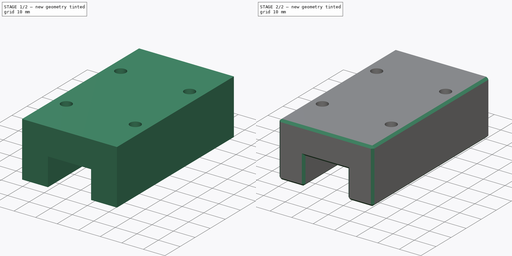
[diagram: build sequence overview — one tinted view per stage of 2, left to right]
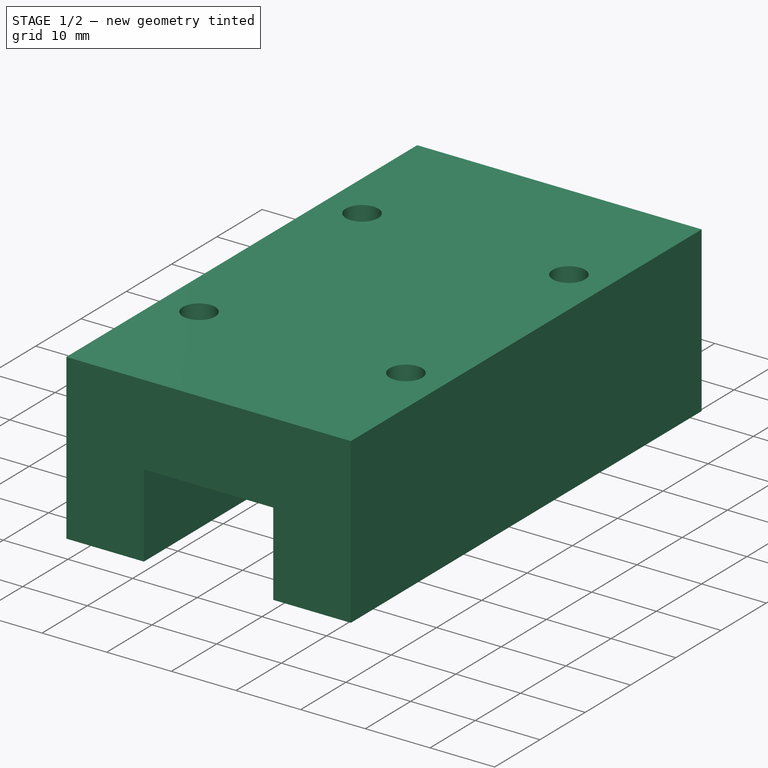
[diagram: stage 1 of 2 — iso view after this stage's code; geometry added in this stage tinted green]
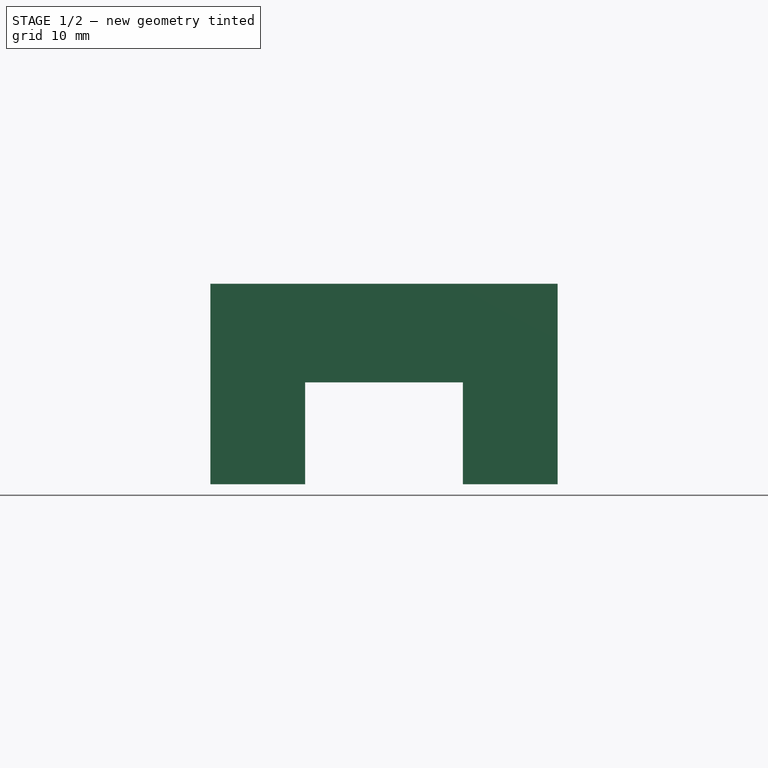
[diagram: stage 1 of 2 — front view after this stage's code; geometry added in this stage tinted green]
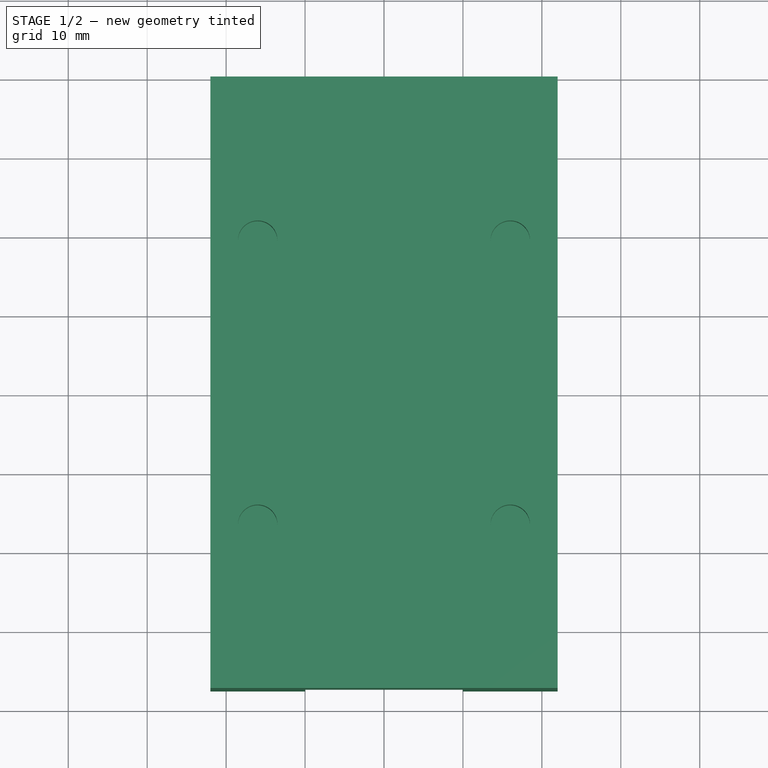
[diagram: stage 1 of 2 — top view after this stage's code; geometry added in this stage tinted green]
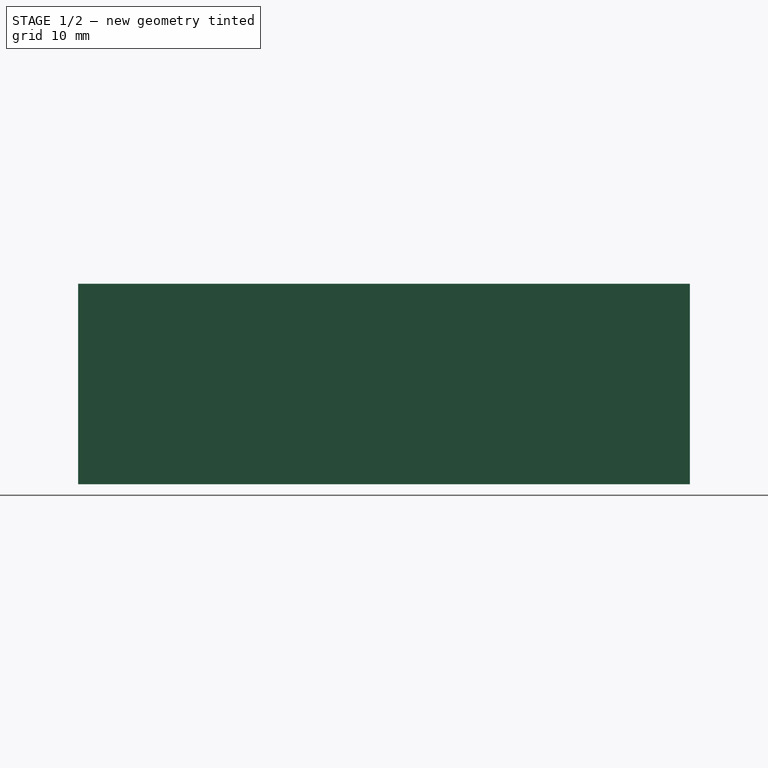
[diagram: stage 1 of 2 — right view after this stage's code; geometry added in this stage tinted green]
FCSTD DOCUMENT  (FreeCAD 0.19R24267 +99 (Git))
Label: HGH20CA slider block
License: All rights reserved
LicenseURL: http://en.wikipedia.org/wiki/All_rights_reserved
objects: Sketcher::SketchObject×3, PartDesign::Pocket×2, PartDesign::Pad×1, PartDesign::Chamfer×1, PartDesign::Body×1
note: 12 computed .brp shape members not serialized (recipe doc carries the construction recipe); baked Part::Feature solids carry a one-line shape summary decoded from their .brp

FEATURE [Sketcher::SketchObject] Sketch  label="End on profile"
  FullyConstrained = true
  MapMode = 5
  Placement = pos=(0,0,0) rot=(1,0,0;1.5708rad)
  Support = -> [XZ_Plane]
  sketch-geometry (9):
    g0: LineSegment StartX=-22 StartY=30 StartZ=0 EndX=22 EndY=30 EndZ=0
    g1: LineSegment StartX=22 StartY=30 StartZ=0 EndX=22 EndY=4.6 EndZ=0
    g2: LineSegment StartX=22 StartY=4.6 StartZ=0 EndX=10 EndY=4.6 EndZ=0
    g3: LineSegment StartX=-22 StartY=4.6 StartZ=0 EndX=-22 EndY=30 EndZ=0
    g4: LineSegment StartX=-10 StartY=4.6 StartZ=0 EndX=-10 EndY=17.5 EndZ=0
    g5: LineSegment StartX=-10 StartY=17.5 StartZ=0 EndX=10 EndY=17.5 EndZ=0
    g6: LineSegment StartX=10 StartY=17.5 StartZ=0 EndX=10 EndY=4.6 EndZ=0
    g7: GeomPoint X=0 Y=0 Z=0
    g8: LineSegment StartX=-10 StartY=4.6 StartZ=0 EndX=-22 EndY=4.6 EndZ=0
  constraints (23):
    c: Coincident(g0,g1)
    c: Coincident(g1,g2)
    c: Coincident(g8,g3)
    c: Coincident(g3,g0)
    c: Horizontal(g2)
    c: Vertical(g1)
    c: Vertical(g3)
    c: Vertical(g4)
    c: Coincident(g5,g4)
    c: Horizontal(g5)
    c: Coincident(g6,g5)
    c: Vertical(g6)
    c: DistanceX(g0,g0) = 44  'W'
    c: DistanceX(g4,g6) = 20  'WR'
    c: DistanceY(g7,g0) = 30  'H'
    c: DistanceY(g7,g8) = 4.6  'H1'
    c: DistanceY(g7,g5) = 17.5  'HR'
    c: Symmetric(g0,g0,g-2)
    c: Coincident(g7,g-1)
    c: Symmetric(g4,g6,g-2)
    c: PointOnObject(g2,g6)
    c: Coincident(g8,g4)
    c: Tangent(g2,g8)
FEATURE [PartDesign::Pad] Pad  label="Block length"
  Direction = (1,1,1)
  Length = 77.5
  Length2 = 100
  Placement = pos=(0,0,0) rot=(1,0,0;1.5708rad)
  Profile = -> Sketch
  Type = 0
FEATURE [Sketcher::SketchObject] Sketch001  label="Bolt hole locations"
  ExternalGeometry = -> [Pad]
  FullyConstrained = true
  MapMode = 5
  Placement = pos=(-2.4e-15,6.7e-15,30) rot=(0,0,1;3.14159rad)
  Support = -> [Pad]
  sketch-geometry (10):
    g0: LineSegment StartX=-16 StartY=56.75 StartZ=0 EndX=16 EndY=56.75 EndZ=0
    g1: LineSegment StartX=16 StartY=56.75 StartZ=0 EndX=16 EndY=20.75 EndZ=0
    g2: LineSegment StartX=16 StartY=20.75 StartZ=0 EndX=-16 EndY=20.75 EndZ=0
    g3: LineSegment StartX=-16 StartY=20.75 StartZ=0 EndX=-16 EndY=56.75 EndZ=0
    g4: Circle CenterX=-16 CenterY=20.75 CenterZ=0 NormalX=0 NormalY=0 NormalZ=1 AngleXU=0 Radius=2.5
    g5: Circle CenterX=16 CenterY=20.75 CenterZ=0 NormalX=0 NormalY=0 NormalZ=1 AngleXU=0 Radius=2.5
    g6: Circle CenterX=16 CenterY=56.75 CenterZ=0 NormalX=0 NormalY=0 NormalZ=1 AngleXU=0 Radius=2.5
    g7: Circle CenterX=-16 CenterY=56.75 CenterZ=0 NormalX=0 NormalY=0 NormalZ=1 AngleXU=0 Radius=2.5
    g8: LineSegment StartX=0 StartY=0 StartZ=0 EndX=0 EndY=20.75 EndZ=0
    g9: LineSegment StartX=-3.6e-15 StartY=77.5 StartZ=0 EndX=-3.6e-15 EndY=56.75 EndZ=0
  constraints (25):
    c: Coincident(g0,g1)
    c: Coincident(g1,g2)
    c: Coincident(g2,g3)
    c: Coincident(g3,g0)
    c: Horizontal(g0)
    c: Vertical(g1)
    c: Vertical(g3)
    c: Coincident(g4,g2)
    c: Coincident(g5,g1)
    c: Coincident(g6,g0)
    c: Coincident(g7,g0)
    c: Equal(g7,g6)
    c: Equal(g6,g5)
    c: Equal(g5,g4)
    c: DistanceY(g3,g3) = 36  'C'
    c: DistanceX(g2,g2) = 32  'B'
    c: Symmetric(g4,g5,g-2)
    c: Coincident(g8,g-1)
    c: Vertical(g8)
    c: PointOnObject(g9,g-3)
    c: PointOnObject(g9,g0)
    c: Equal(g8,g9)
    c: PointOnObject(g8,g2)
    c: Symmetric(g-3,g-3,g9)
    c: Diameter(g4) = 5
FEATURE [PartDesign::Pocket] Pocket  label="Bolt hole depth M5 threaded"
  BaseFeature = -> Pad
  Length = 6
  Length2 = 100
  Placement = pos=(0,0,0) rot=(1,0,0;1.5708rad)
  Profile = -> Sketch001
  Type = 0
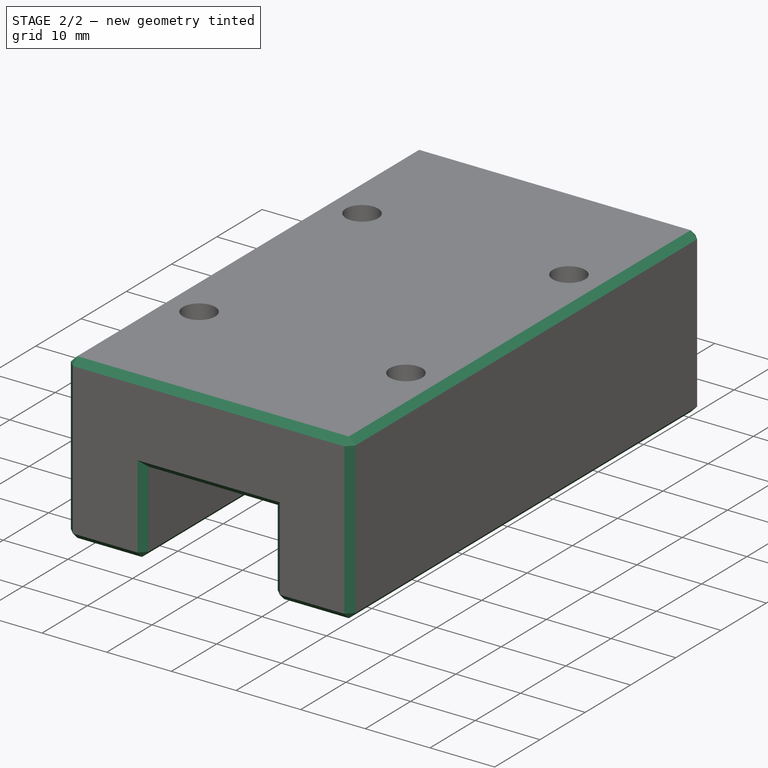
[diagram: stage 2 of 2 — iso view after this stage's code; geometry added in this stage tinted green]
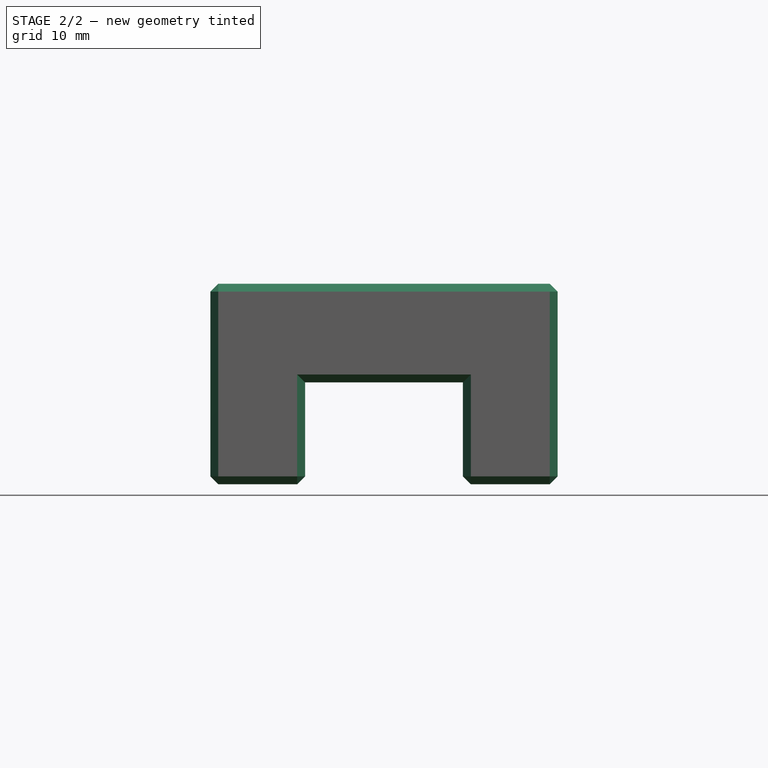
[diagram: stage 2 of 2 — front view after this stage's code; geometry added in this stage tinted green]
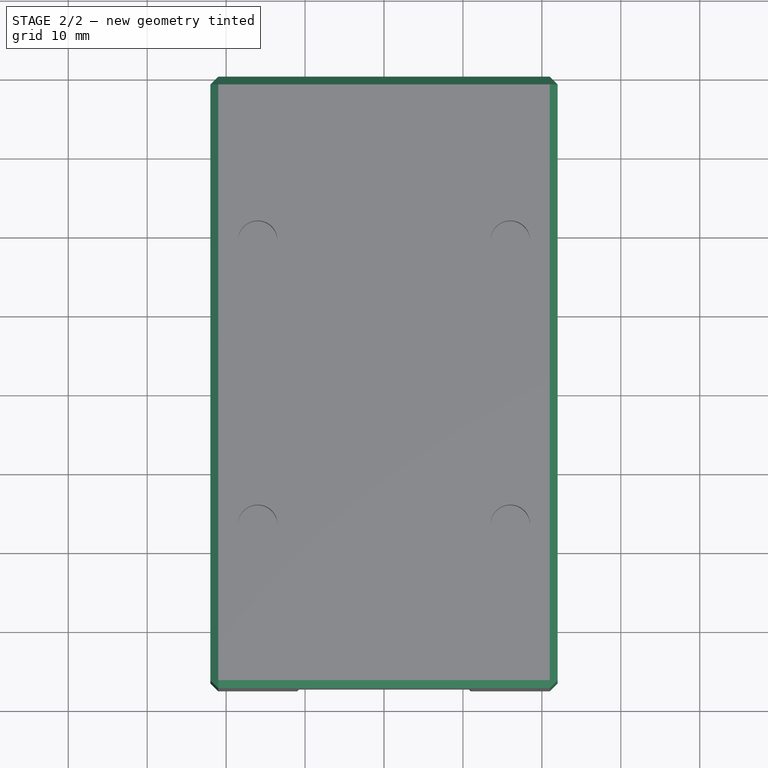
[diagram: stage 2 of 2 — top view after this stage's code; geometry added in this stage tinted green]
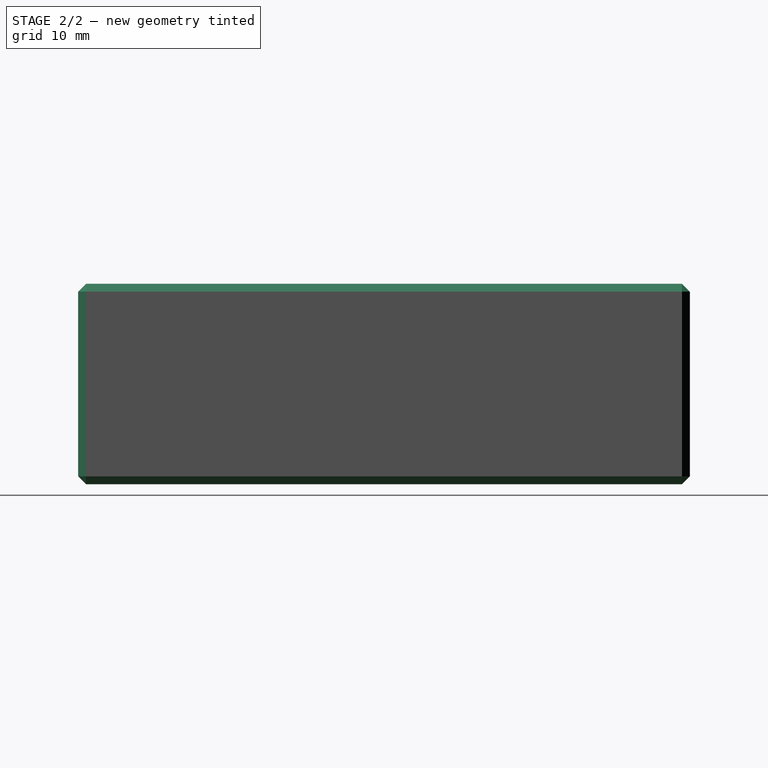
[diagram: stage 2 of 2 — right view after this stage's code; geometry added in this stage tinted green]
FEATURE [PartDesign::Chamfer] Chamfer  label="Edge chamfers"
  Angle = 45
  Base = -> Pocket [Edge27,Edge22,Edge8,Edge2,Edge1,Edge28,Edge7,Edge20,Edge19,Edge18,Edge17,Edge16,Edge10,Edge6,Edge3,Edge9,Edge11,Edge12,Edge13,Edge14,Edge15,Edge4]
  BaseFeature = -> Pocket
  ChamferType = 0
  FlipDirection = false
  Placement = pos=(0,0,0) rot=(1,0,0;1.5708rad)
  Size = 1
  Size2 = 1
  SupportTransform = false
FEATURE [Sketcher::SketchObject] Sketch002  label="Grease nipple port diameter approx"
  FullyConstrained = true
  MapMode = 5
  Placement = pos=(0,0,0) rot=(1,0,0;1.5708rad)
  Support = -> [XZ_Plane]
  sketch-geometry (1):
    g0: Circle CenterX=0 CenterY=24 CenterZ=0 NormalX=0 NormalY=0 NormalZ=1 AngleXU=0 Radius=3
  constraints (3):
    c: PointOnObject(g0,g-2)
    c: Radius(g0) = 3
    c: DistanceY(g-1,g0) = 24
FEATURE [PartDesign::Pocket] Pocket001  label="Grease nipple port depth approx"
  BaseFeature = -> Chamfer
  Length = 6
  Length2 = 100
  Placement = pos=(0,0,0) rot=(1,0,0;1.5708rad)
  Profile = -> Sketch002
  Reversed = true
  Type = 0
FEATURE [PartDesign::Body] Body
  Group = -> [Sketch,Pad,Sketch001,Pocket,Chamfer,Sketch002,Pocket001]
  Origin = -> Origin
  Tip = -> Pocket001
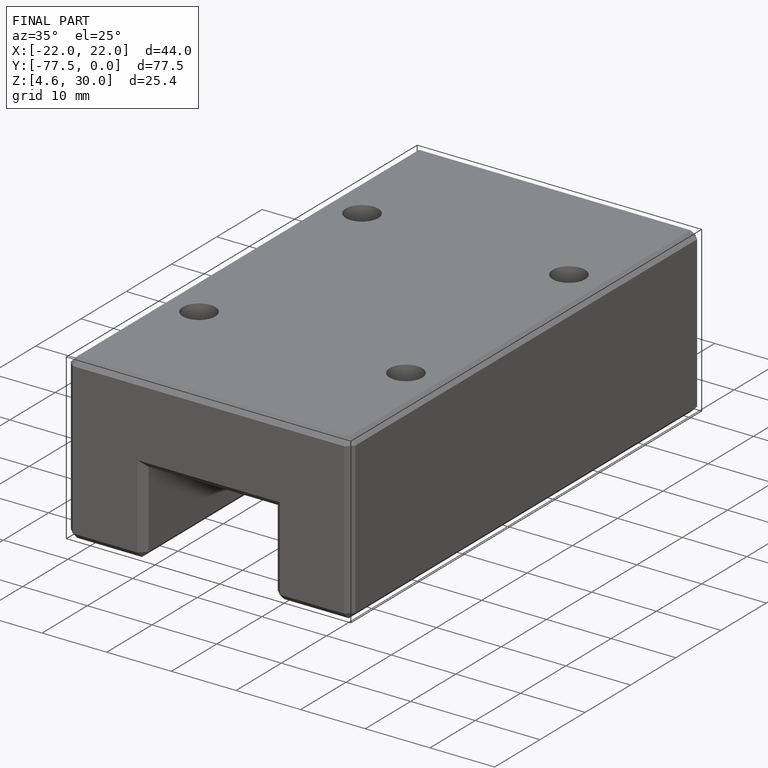
[diagram: finished part — iso view with bounding-box wireframe]
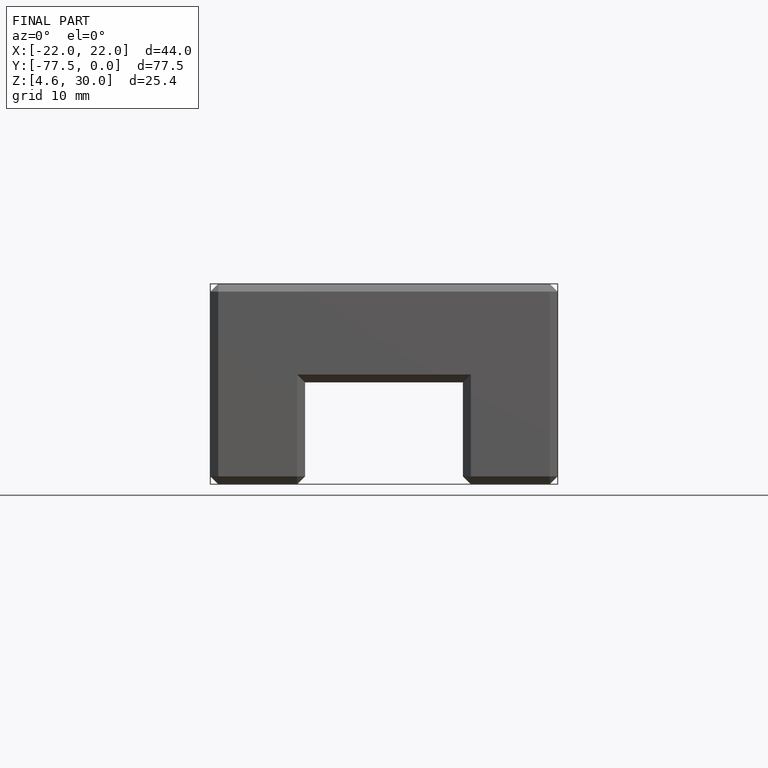
[diagram: finished part — front view with bounding-box wireframe]
